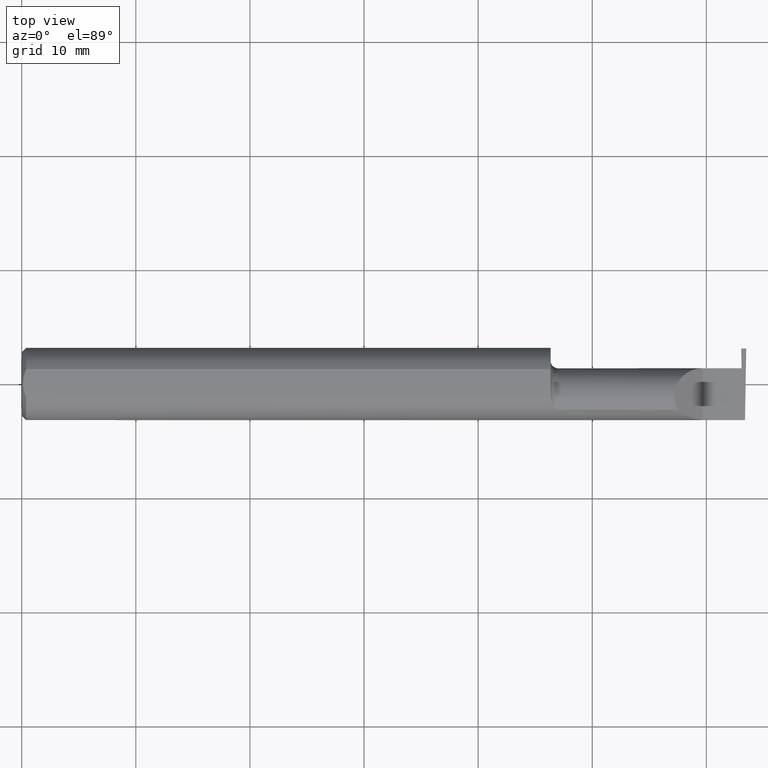
[diagram: clean part render]
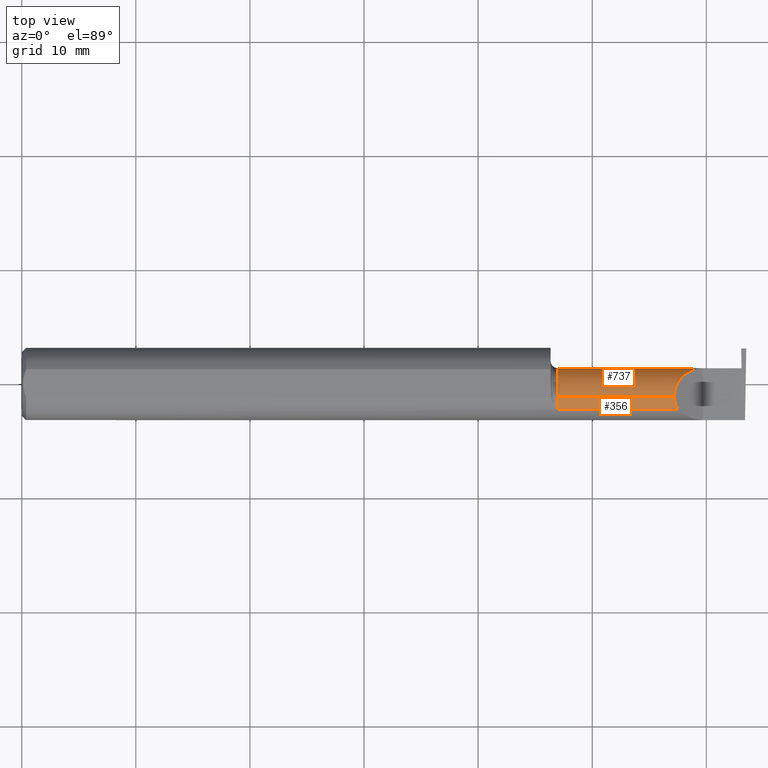
[diagram: same view with one multi-face feature highlighted, each face labeled with its STEP entity id]
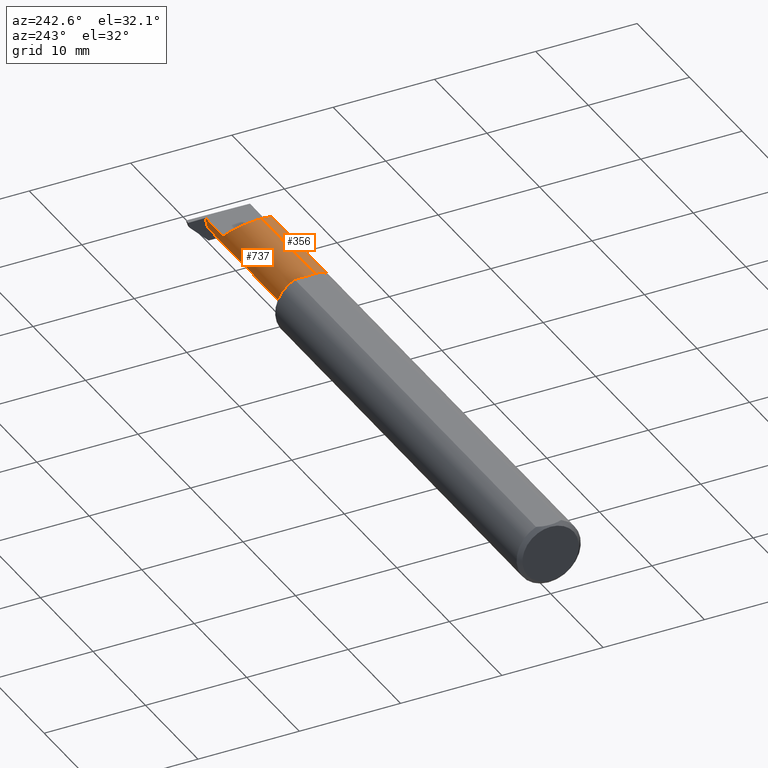
[diagram: same view with one multi-face feature highlighted, each face labeled with its STEP entity id]
A machine part, top view. The highlighted faces form ONE feature: a constant-radius fillet chain: 2 tangent blend faces with common blend radius 2.4892 mm. The faces share edges in the B-rep.
A second angle (auxiliary view) of the same feature is appended — it is thin or edge-on in the first view.
Their STEP definitions:
[1] entity #737 (Cylinder):
#8 = FACE_OUTER_BOUND ( 'NONE', #787, .T. ) ;
#25 = EDGE_CURVE ( 'NONE', #541, #712, #765, .T. ) ;
#53 = VECTOR ( 'NONE', #253, 39.37007874015748143 ) ;
#61 = VERTEX_POINT ( 'NONE', #266 ) ;
#69 = CARTESIAN_POINT ( 'NONE',  ( 1.824999999999999956, 0.05414999999999998981, 8.266365894244626938E-17 ) ) ;
#81 = CARTESIAN_POINT ( 'NONE',  ( 2.483482208140546099, 0.05115612325138135796, -0.02403823089877876393 ) ) ;
#91 = AXIS2_PLACEMENT_3D ( 'NONE', #180, #362, #437 ) ;
#94 = LINE ( 'NONE', #149, #458 ) ;
#99 = CARTESIAN_POINT ( 'NONE',  ( 2.292592929112563738, 0.05415000000000004532, 0.05740707088743669112 ) ) ;
#119 = ORIENTED_EDGE ( 'NONE', *, *, #165, .F. ) ;
#127 = CARTESIAN_POINT ( 'NONE',  ( 2.485853341463134747, 0.03970102213383011613, -0.06931214282740411070 ) ) ;
#134 = CARTESIAN_POINT ( 'NONE',  ( 1.824999999999999956, -0.04385000000000001397, 0.09800000000000000377 ) ) ;
#148 = ORIENTED_EDGE ( 'NONE', *, *, #470, .F. ) ;
#149 = CARTESIAN_POINT ( 'NONE',  ( 1.824999999999999956, -0.04385000000000000703, -0.09800000000000000377 ) ) ;
#165 = EDGE_CURVE ( 'NONE', #257, #511, #688, .T. ) ;
#180 = CARTESIAN_POINT ( 'NONE',  ( 1.824999999999999956, -0.04385000000000001397, 0.000000000000000000 ) ) ;
#181 = CARTESIAN_POINT ( 'NONE',  ( 2.252000000000000668, -0.04385000000000001397, 0.09800000000000000377 ) ) ;
#189 = CYLINDRICAL_SURFACE ( 'NONE', #91, 0.09800000000000000377 ) ;
#202 = CARTESIAN_POINT ( 'NONE',  ( 2.482499999999999929, 0.05414999999999997593, 8.266348525252012935E-17 ) ) ;
#209 = ORIENTED_EDGE ( 'NONE', *, *, #327, .T. ) ;
#216 = CARTESIAN_POINT ( 'NONE',  ( 2.482499999999999929, 0.05414999123725500879, -4.144270477499314721E-05 ) ) ;
#234 = CARTESIAN_POINT ( 'NONE',  ( 2.487353376795599758, -0.04385000000000004172, -0.09799999999999998990 ) ) ;
#253 = DIRECTION ( 'NONE',  ( 1.000000000000000000, 0.000000000000000000, 0.000000000000000000 ) ) ;
#257 = VERTEX_POINT ( 'NONE', #776 ) ;
#260 = DIRECTION ( 'NONE',  ( -1.000000000000000000, -0.000000000000000000, -0.000000000000000000 ) ) ;
#263 = DIRECTION ( 'NONE',  ( -1.000000000000000000, -0.000000000000000000, -0.000000000000000000 ) ) ;
#265 = EDGE_CURVE ( 'NONE', #257, #61, #567, .T. ) ;
#266 = CARTESIAN_POINT ( 'NONE',  ( 2.350000000000000089, 0.05414999999999988572, 1.836970198721028825E-17 ) ) ;
#280 = ORIENTED_EDGE ( 'NONE', *, *, #505, .F. ) ;
#289 = VERTEX_POINT ( 'NONE', #651 ) ;
#311 = ORIENTED_EDGE ( 'NONE', *, *, #25, .T. ) ;
#317 = CARTESIAN_POINT ( 'NONE',  ( 2.487354867654527624, 0.002850604310161131225, -0.09799999999999998990 ) ) ;
#326 = CARTESIAN_POINT ( 'NONE',  ( 2.483160734290017047, 0.05314349951121604548, -0.01618353831829645942 ) ) ;
#327 = EDGE_CURVE ( 'NONE', #61, #541, #618, .T. ) ;
#331 = CARTESIAN_POINT ( 'NONE',  ( 1.849999999999999867, -0.04385000000000001397, 0.000000000000000000 ) ) ;
#362 = DIRECTION ( 'NONE',  ( -1.000000000000000000, -0.000000000000000000, -0.000000000000000000 ) ) ;
#373 = EDGE_CURVE ( 'NONE', #708, #289, #729, .T. ) ;
#379 = CARTESIAN_POINT ( 'NONE',  ( 1.849999999999999867, -0.04385000000000000009, -0.09800000000000003153 ) ) ;
#398 = CARTESIAN_POINT ( 'NONE',  ( 1.849999999999999867, -0.04385000000000001397, 0.09800000000000003153 ) ) ;
#412 = CARTESIAN_POINT ( 'NONE',  ( 2.350000000000000089, 0.05414999999999988572, 1.836970198721028825E-17 ) ) ;
#420 = AXIS2_PLACEMENT_3D ( 'NONE', #743, #761, #571 ) ;
#422 = AXIS2_PLACEMENT_3D ( 'NONE', #331, #260, #593 ) ;
#424 =( BOUNDED_CURVE ( )  B_SPLINE_CURVE ( 3, ( #764, #326, #769, #216 ),
 .UNSPECIFIED., .F., .T. ) 
 B_SPLINE_CURVE_WITH_KNOTS ( ( 4, 4 ),
 ( 4.463962699426422098, 4.711356644242684411 ),
 .UNSPECIFIED. ) 
 CURVE ( )  GEOMETRIC_REPRESENTATION_ITEM ( )  RATIONAL_B_SPLINE_CURVE ( ( 1.000000000000000000, 0.9949061863228998437, 0.9949061863228998437, 1.000000000000000000 ) ) 
 REPRESENTATION_ITEM ( '' )  );
#437 = DIRECTION ( 'NONE',  ( 0.000000000000000000, 0.000000000000000000, 1.000000000000000000 ) ) ;
#448 = EDGE_CURVE ( 'NONE', #708, #731, #94, .T. ) ;
#458 = VECTOR ( 'NONE', #263, 39.37007874015748143 ) ;
#470 = EDGE_CURVE ( 'NONE', #511, #731, #766, .T. ) ;
#505 = EDGE_CURVE ( 'NONE', #289, #712, #424, .T. ) ;
#511 = VERTEX_POINT ( 'NONE', #398 ) ;
#526 = DIRECTION ( 'NONE',  ( -1.000000000000000000, -0.000000000000000000, -0.000000000000000000 ) ) ;
#541 = VERTEX_POINT ( 'NONE', #202 ) ;
#542 = VECTOR ( 'NONE', #526, 39.37007874015748143 ) ;
#547 = ORIENTED_EDGE ( 'NONE', *, *, #373, .F. ) ;
#559 = CARTESIAN_POINT ( 'NONE',  ( 2.482499999999999929, 0.05414999123725500879, -4.144270477499314721E-05 ) ) ;
#567 =( BOUNDED_CURVE ( )  B_SPLINE_CURVE ( 3, ( #181, #721, #99, #412 ),
 .UNSPECIFIED., .F., .T. ) 
 B_SPLINE_CURVE_WITH_KNOTS ( ( 4, 4 ),
 ( 0.000000000000000000, 1.570796326794896558 ),
 .UNSPECIFIED. ) 
 CURVE ( )  GEOMETRIC_REPRESENTATION_ITEM ( )  RATIONAL_B_SPLINE_CURVE ( ( 1.000000000000000000, 0.8047378541243649375, 0.8047378541243649375, 1.000000000000000000 ) ) 
 REPRESENTATION_ITEM ( '' )  );
#571 = DIRECTION ( 'NONE',  ( 0.000000000000000000, 0.000000000000000000, 1.000000000000000000 ) ) ;
#593 = DIRECTION ( 'NONE',  ( 0.000000000000000000, 0.000000000000000000, 1.000000000000000000 ) ) ;
#618 = LINE ( 'NONE', #69, #53 ) ;
#624 = ORIENTED_EDGE ( 'NONE', *, *, #448, .T. ) ;
#651 = CARTESIAN_POINT ( 'NONE',  ( 2.483482208140546099, 0.05115612325138135796, -0.02403823089877876393 ) ) ;
#662 = ORIENTED_EDGE ( 'NONE', *, *, #265, .T. ) ;
#680 = CARTESIAN_POINT ( 'NONE',  ( 2.487353376795599758, -0.04385000000000004172, -0.09799999999999998990 ) ) ;
#688 = LINE ( 'NONE', #134, #542 ) ;
#708 = VERTEX_POINT ( 'NONE', #234 ) ;
#712 = VERTEX_POINT ( 'NONE', #559 ) ;
#721 = CARTESIAN_POINT ( 'NONE',  ( 2.252000000000000668, 0.01355707088743670317, 0.09799999999999996214 ) ) ;
#729 =( BOUNDED_CURVE ( )  B_SPLINE_CURVE ( 3, ( #680, #317, #127, #81 ),
 .UNSPECIFIED., .F., .T. ) 
 B_SPLINE_CURVE_WITH_KNOTS ( ( 4, 4 ),
 ( 3.140983202202990654, 4.463962699426417657 ),
 .UNSPECIFIED. ) 
 CURVE ( )  GEOMETRIC_REPRESENTATION_ITEM ( )  RATIONAL_B_SPLINE_CURVE ( ( 1.000000000000000000, 0.8593853101475611433, 0.8593853101475611433, 1.000000000000000000 ) ) 
 REPRESENTATION_ITEM ( '' )  );
#731 = VERTEX_POINT ( 'NONE', #379 ) ;
#737 = ADVANCED_FACE ( 'NONE', ( #8 ), #189, .T. ) ;
#743 = CARTESIAN_POINT ( 'NONE',  ( 2.482499999999999929, -0.04385000000000001397, 0.000000000000000000 ) ) ;
#761 = DIRECTION ( 'NONE',  ( -1.000000000000000000, -0.000000000000000000, -0.000000000000000000 ) ) ;
#764 = CARTESIAN_POINT ( 'NONE',  ( 2.483482208140546099, 0.05115612325138135796, -0.02403823089877876393 ) ) ;
#765 = CIRCLE ( 'NONE', #420, 0.09799999999999998990 ) ;
#766 = CIRCLE ( 'NONE', #422, 0.09800000000000001765 ) ;
#769 = CARTESIAN_POINT ( 'NONE',  ( 2.482831655309489793, 0.05414656493488106959, -0.008143655253979793437 ) ) ;
#776 = CARTESIAN_POINT ( 'NONE',  ( 2.252000000000000668, -0.04385000000000001397, 0.09800000000000000377 ) ) ;
#787 = EDGE_LOOP ( 'NONE', ( #547, #624, #148, #119, #662, #209, #311, #280 ) ) ;
[2] entity #356 (Cylinder):
#3 = CARTESIAN_POINT ( 'NONE',  ( 1.824999999999999956, -0.04385000000000001397, 0.000000000000000000 ) ) ;
#7 = AXIS2_PLACEMENT_3D ( 'NONE', #3, #240, #561 ) ;
#12 = DIRECTION ( 'NONE',  ( 1.000000000000000000, 0.000000000000000000, 0.000000000000000000 ) ) ;
#47 = CARTESIAN_POINT ( 'NONE',  ( 1.849999999999999867, -0.04385000000000001397, 0.000000000000000000 ) ) ;
#78 = LINE ( 'NONE', #312, #287 ) ;
#82 = CARTESIAN_POINT ( 'NONE',  ( 2.263628075281542529, -0.09015216647662421812, 0.08637192471845822617 ) ) ;
#88 = CARTESIAN_POINT ( 'NONE',  ( 2.252000000000000668, -0.04385000000000001397, 0.09800000000000000377 ) ) ;
#98 = EDGE_CURVE ( 'NONE', #368, #257, #753, .T. ) ;
#109 = ORIENTED_EDGE ( 'NONE', *, *, #242, .F. ) ;
#134 = CARTESIAN_POINT ( 'NONE',  ( 1.824999999999999956, -0.04385000000000001397, 0.09800000000000000377 ) ) ;
#165 = EDGE_CURVE ( 'NONE', #257, #511, #688, .T. ) ;
#175 = CIRCLE ( 'NONE', #777, 0.09800000000000001765 ) ;
#229 = ORIENTED_EDGE ( 'NONE', *, *, #165, .T. ) ;
#240 = DIRECTION ( 'NONE',  ( -1.000000000000000000, -0.000000000000000000, -0.000000000000000000 ) ) ;
#242 = EDGE_CURVE ( 'NONE', #759, #511, #175, .T. ) ;
#254 = CARTESIAN_POINT ( 'NONE',  ( 2.252000000000000668, -0.06008937020638503712, 0.09799999999999998990 ) ) ;
#257 = VERTEX_POINT ( 'NONE', #776 ) ;
#282 = DIRECTION ( 'NONE',  ( 0.000000000000000000, 0.000000000000000000, 1.000000000000000000 ) ) ;
#287 = VECTOR ( 'NONE', #12, 39.37007874015748143 ) ;
#302 = FACE_OUTER_BOUND ( 'NONE', #604, .T. ) ;
#312 = CARTESIAN_POINT ( 'NONE',  ( 2.166249999999999787, -0.09015216647662482874, 0.08637192471845768493 ) ) ;
#318 = CARTESIAN_POINT ( 'NONE',  ( 1.849999999999999867, -0.09015216647662482874, 0.08637192471845769881 ) ) ;
#356 = ADVANCED_FACE ( 'NONE', ( #302 ), #557, .T. ) ;
#368 = VERTEX_POINT ( 'NONE', #439 ) ;
#398 = CARTESIAN_POINT ( 'NONE',  ( 1.849999999999999867, -0.04385000000000001397, 0.09800000000000003153 ) ) ;
#435 = ORIENTED_EDGE ( 'NONE', *, *, #744, .T. ) ;
#439 = CARTESIAN_POINT ( 'NONE',  ( 2.263628075281542529, -0.09015216647662421812, 0.08637192471845822617 ) ) ;
#511 = VERTEX_POINT ( 'NONE', #398 ) ;
#526 = DIRECTION ( 'NONE',  ( -1.000000000000000000, -0.000000000000000000, -0.000000000000000000 ) ) ;
#542 = VECTOR ( 'NONE', #526, 39.37007874015748143 ) ;
#557 = CYLINDRICAL_SURFACE ( 'NONE', #7, 0.09800000000000000377 ) ;
#561 = DIRECTION ( 'NONE',  ( 0.000000000000000000, 0.000000000000000000, 1.000000000000000000 ) ) ;
#604 = EDGE_LOOP ( 'NONE', ( #635, #229, #109, #435 ) ) ;
#628 = CARTESIAN_POINT ( 'NONE',  ( 2.255955442396118560, -0.07583965973232772995, 0.09404455760388213958 ) ) ;
#635 = ORIENTED_EDGE ( 'NONE', *, *, #98, .T. ) ;
#688 = LINE ( 'NONE', #134, #542 ) ;
#715 = DIRECTION ( 'NONE',  ( -1.000000000000000000, -0.000000000000000000, -0.000000000000000000 ) ) ;
#744 = EDGE_CURVE ( 'NONE', #759, #368, #78, .T. ) ;
#753 =( BOUNDED_CURVE ( )  B_SPLINE_CURVE ( 3, ( #82, #628, #254, #88 ),
 .UNSPECIFIED., .F., .T. ) 
 B_SPLINE_CURVE_WITH_KNOTS ( ( 4, 4 ),
 ( 5.791092865617133434, 6.283185307179586232 ),
 .UNSPECIFIED. ) 
 CURVE ( )  GEOMETRIC_REPRESENTATION_ITEM ( )  RATIONAL_B_SPLINE_CURVE ( ( 1.000000000000000000, 0.9799220177372784946, 0.9799220177372784946, 1.000000000000000000 ) ) 
 REPRESENTATION_ITEM ( '' )  );
#759 = VERTEX_POINT ( 'NONE', #318 ) ;
#776 = CARTESIAN_POINT ( 'NONE',  ( 2.252000000000000668, -0.04385000000000001397, 0.09800000000000000377 ) ) ;
#777 = AXIS2_PLACEMENT_3D ( 'NONE', #47, #715, #282 ) ;